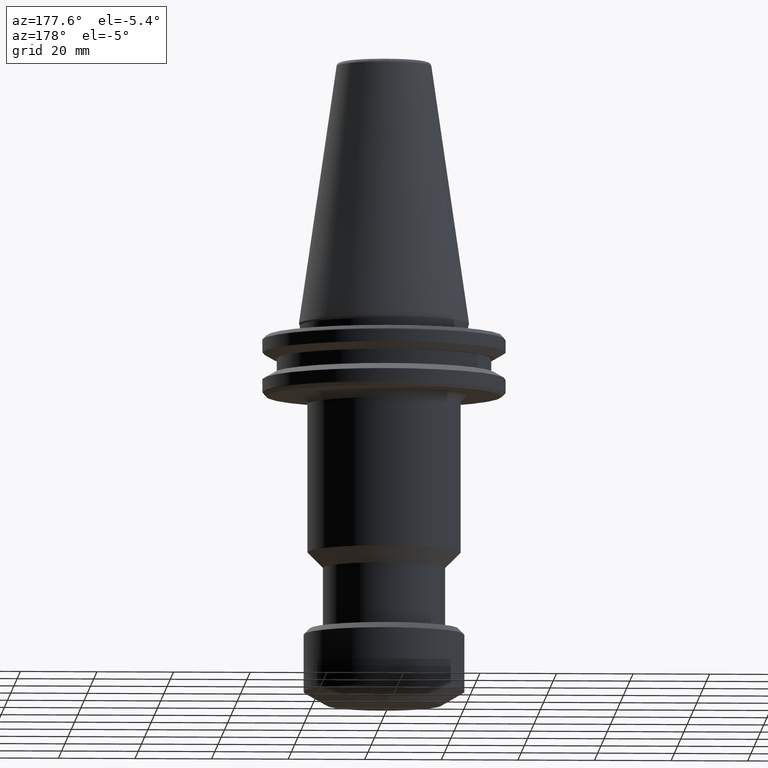
[diagram: clean part render]
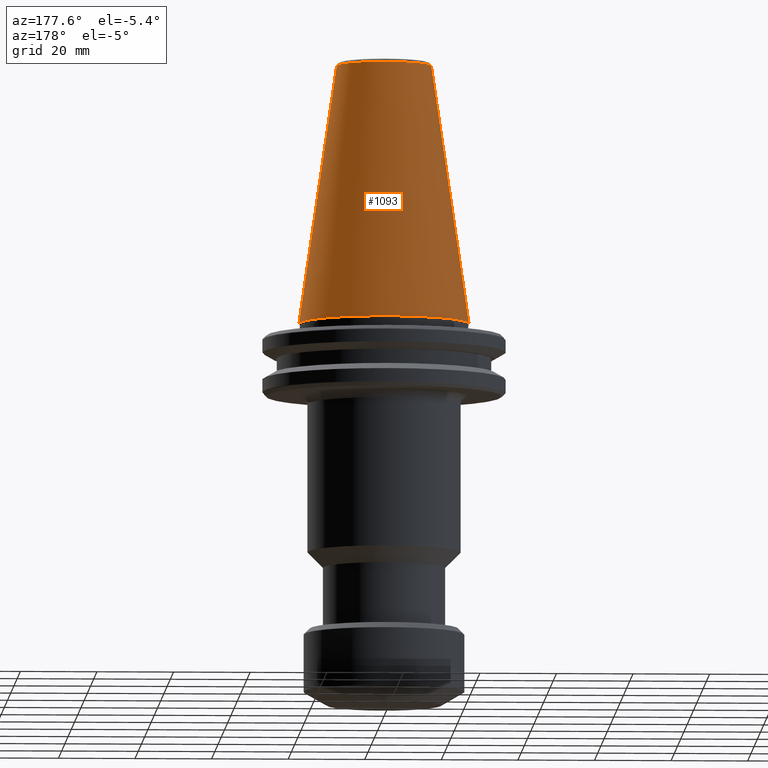
[diagram: same view with one face highlighted and labeled with its STEP entity id]
A machine part, auxiliary view. The second image highlights one B-rep face of the part: STEP entity #1093.
In plain terms, the highlighted conical surface has half-angle 8.297 deg.
Its self-contained STEP definition (entity closure, byte-faithful):
#7 = CARTESIAN_POINT ( 'NONE',  ( 22.22499999999999400, 2.721777511104992100E-015, 0.0000000000000000000 ) ) ;
#82 = AXIS2_PLACEMENT_3D ( 'NONE', #342, #224, #230 ) ;
#116 = CARTESIAN_POINT ( 'NONE',  ( 22.22499999999999400, 2.721777511104992100E-015, 0.0000000000000000000 ) ) ;
#224 = DIRECTION ( 'NONE',  ( 0.0000000000000000000, 0.0000000000000000000, -1.000000000000000000 ) ) ;
#230 = DIRECTION ( 'NONE',  ( -1.000000000000000000, 0.0000000000000000000, 0.0000000000000000000 ) ) ;
#262 = CONICAL_SURFACE ( 'NONE', #1307, 22.22499999999999400, 0.1448138465495947800 ) ;
#307 = ORIENTED_EDGE ( 'NONE', *, *, #1491, .T. ) ;
#342 = CARTESIAN_POINT ( 'NONE',  ( 0.0000000000000000000, 0.0000000000000000000, 67.54430822699998800 ) ) ;
#355 = DIRECTION ( 'NONE',  ( 0.0000000000000000000, 0.0000000000000000000, -1.000000000000000000 ) ) ;
#372 = DIRECTION ( 'NONE',  ( -0.0000000000000000000, -0.0000000000000000000, 1.000000000000000000 ) ) ;
#436 = AXIS2_PLACEMENT_3D ( 'NONE', #868, #372, #1124 ) ;
#465 = LINE ( 'NONE', #7, #763 ) ;
#516 = VECTOR ( 'NONE', #767, 1000.000000000000100 ) ;
#526 = VERTEX_POINT ( 'NONE', #1264 ) ;
#709 = CIRCLE ( 'NONE', #436, 22.22499999999999400 ) ;
#722 = CARTESIAN_POINT ( 'NONE',  ( 12.37469537600000400, -9.137124401303337300E-010, 67.54430822700000200 ) ) ;
#763 = VECTOR ( 'NONE', #1416, 1000.000000000000100 ) ;
#767 = DIRECTION ( 'NONE',  ( -0.1443082272694599400, 0.0000000000000000000, -0.9895327864918603800 ) ) ;
#775 = ORIENTED_EDGE ( 'NONE', *, *, #1537, .T. ) ;
#845 = LINE ( 'NONE', #1424, #516 ) ;
#858 = EDGE_LOOP ( 'NONE', ( #307, #1012, #775, #1517 ) ) ;
#868 = CARTESIAN_POINT ( 'NONE',  ( 0.0000000000000000000, 0.0000000000000000000, 0.0000000000000000000 ) ) ;
#899 = EDGE_CURVE ( 'NONE', #1111, #1234, #465, .T. ) ;
#1012 = ORIENTED_EDGE ( 'NONE', *, *, #899, .T. ) ;
#1050 = CARTESIAN_POINT ( 'NONE',  ( 0.0000000000000000000, 0.0000000000000000000, 0.0000000000000000000 ) ) ;
#1093 = ADVANCED_FACE ( 'NONE', ( #1314 ), #262, .T. ) ;
#1111 = VERTEX_POINT ( 'NONE', #722 ) ;
#1124 = DIRECTION ( 'NONE',  ( -1.000000000000000000, 0.0000000000000000000, 0.0000000000000000000 ) ) ;
#1234 = VERTEX_POINT ( 'NONE', #116 ) ;
#1264 = CARTESIAN_POINT ( 'NONE',  ( -12.37469537600000400, 0.0000000000000000000, 67.54430822700000200 ) ) ;
#1307 = AXIS2_PLACEMENT_3D ( 'NONE', #1050, #355, #1620 ) ;
#1314 = FACE_OUTER_BOUND ( 'NONE', #858, .T. ) ;
#1332 = VERTEX_POINT ( 'NONE', #1492 ) ;
#1416 = DIRECTION ( 'NONE',  ( 0.1443082272694599400, 1.767266086161729200E-017, -0.9895327864918603800 ) ) ;
#1424 = CARTESIAN_POINT ( 'NONE',  ( -22.22499999999999400, 0.0000000000000000000, 0.0000000000000000000 ) ) ;
#1491 = EDGE_CURVE ( 'NONE', #526, #1111, #1649, .T. ) ;
#1492 = CARTESIAN_POINT ( 'NONE',  ( -22.22499999999999400, 0.0000000000000000000, 0.0000000000000000000 ) ) ;
#1517 = ORIENTED_EDGE ( 'NONE', *, *, #1607, .F. ) ;
#1537 = EDGE_CURVE ( 'NONE', #1234, #1332, #709, .T. ) ;
#1607 = EDGE_CURVE ( 'NONE', #526, #1332, #845, .T. ) ;
#1620 = DIRECTION ( 'NONE',  ( -1.000000000000000000, 0.0000000000000000000, 0.0000000000000000000 ) ) ;
#1649 = CIRCLE ( 'NONE', #82, 12.37469537600000400 ) ;